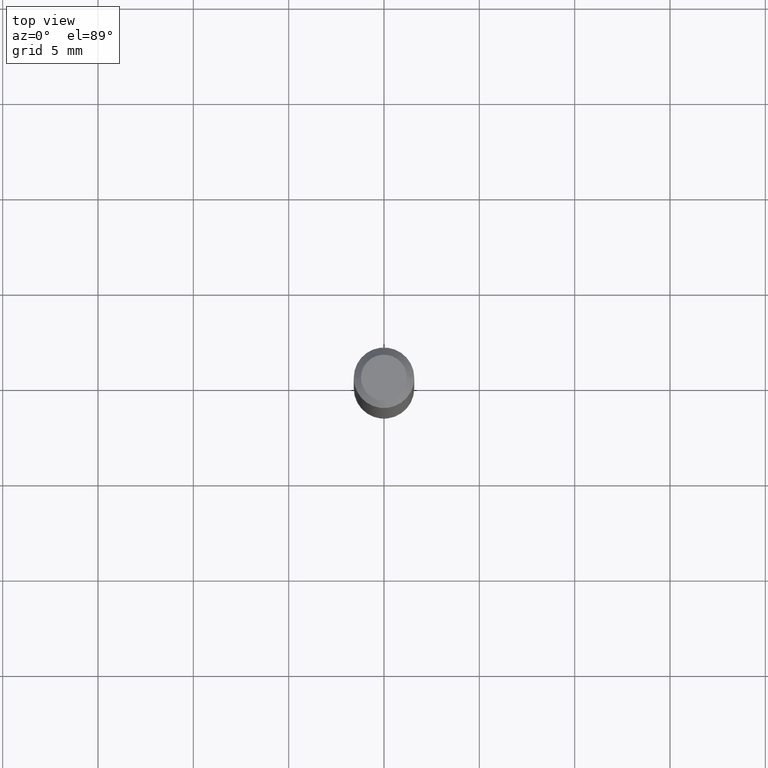
[diagram: clean part render]
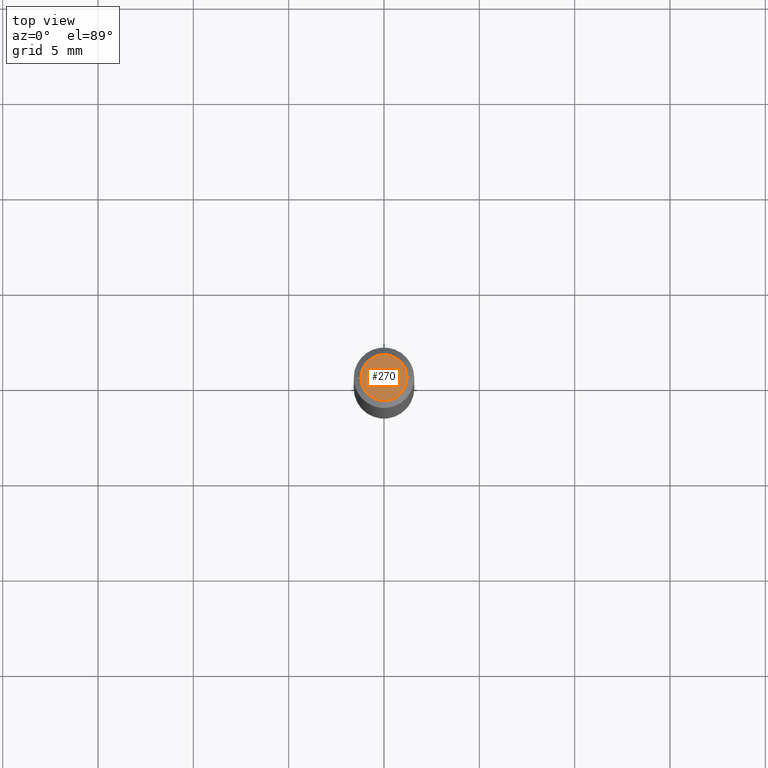
[diagram: same view with one face highlighted and labeled with its STEP entity id]
A machine part, top view. The second image highlights one B-rep face of the part: STEP entity #270.
In plain terms, the highlighted planar face has unit normal (0, -0, -1).
Its self-contained STEP definition (entity closure, byte-faithful):
#5 = CIRCLE ( 'NONE', #329, 0.04749999999999999362 ) ;
#22 = EDGE_CURVE ( 'NONE', #242, #23, #291, .T. ) ;
#23 = VERTEX_POINT ( 'NONE', #412 ) ;
#35 = DIRECTION ( 'NONE',  ( 1.000000000000000000, -6.982962677686267499E-15, 4.852736867747366768E-29 ) ) ;
#93 = CARTESIAN_POINT ( 'NONE',  ( 3.316907271900976096E-16, 0.04749999999999999362, -1.230947746555162994E-18 ) ) ;
#129 = FACE_OUTER_BOUND ( 'NONE', #372, .T. ) ;
#132 = AXIS2_PLACEMENT_3D ( 'NONE', #360, #171, #35 ) ;
#171 = DIRECTION ( 'NONE',  ( -2.445468806185136597E-29, 3.491481338843145583E-15, 1.000000000000000000 ) ) ;
#172 = CARTESIAN_POINT ( 'NONE',  ( -8.051188380117617343E-45, 1.149496322079166104E-30, 3.292288316969884985E-16 ) ) ;
#174 = DIRECTION ( 'NONE',  ( 1.000000000000000000, -6.982962677686267499E-15, 4.852736867747366768E-29 ) ) ;
#206 = DIRECTION ( 'NONE',  ( 2.438088387897960049E-29, -3.491481338843145188E-15, -1.000000000000000000 ) ) ;
#242 = VERTEX_POINT ( 'NONE', #302 ) ;
#269 = DIRECTION ( 'NONE',  ( -1.000000000000000000, 6.982962677686265922E-15, -4.876176775795935793E-29 ) ) ;
#270 = ADVANCED_FACE ( 'NONE', ( #129 ), #446, .F. ) ;
#271 = ORIENTED_EDGE ( 'NONE', *, *, #22, .T. ) ;
#282 = DIRECTION ( 'NONE',  ( -2.445468806185136597E-29, 3.491481338843145583E-15, 1.000000000000000000 ) ) ;
#291 = CIRCLE ( 'NONE', #132, 0.04749999999999999362 ) ;
#302 = CARTESIAN_POINT ( 'NONE',  ( 0.04749999999999999362, -4.035134999187572707E-16, 3.292288316969910130E-16 ) ) ;
#329 = AXIS2_PLACEMENT_3D ( 'NONE', #172, #282, #174 ) ;
#342 = AXIS2_PLACEMENT_3D ( 'NONE', #93, #206, #269 ) ;
#360 = CARTESIAN_POINT ( 'NONE',  ( -8.051188380117617343E-45, 1.149496322079166104E-30, 3.292288316969884985E-16 ) ) ;
#372 = EDGE_LOOP ( 'NONE', ( #436, #271 ) ) ;
#412 = CARTESIAN_POINT ( 'NONE',  ( -0.04749999999999999362, 3.578768372314216422E-16, 3.292288316969860333E-16 ) ) ;
#417 = EDGE_CURVE ( 'NONE', #23, #242, #5, .T. ) ;
#436 = ORIENTED_EDGE ( 'NONE', *, *, #417, .T. ) ;
#446 = PLANE ( 'NONE',  #342 ) ;